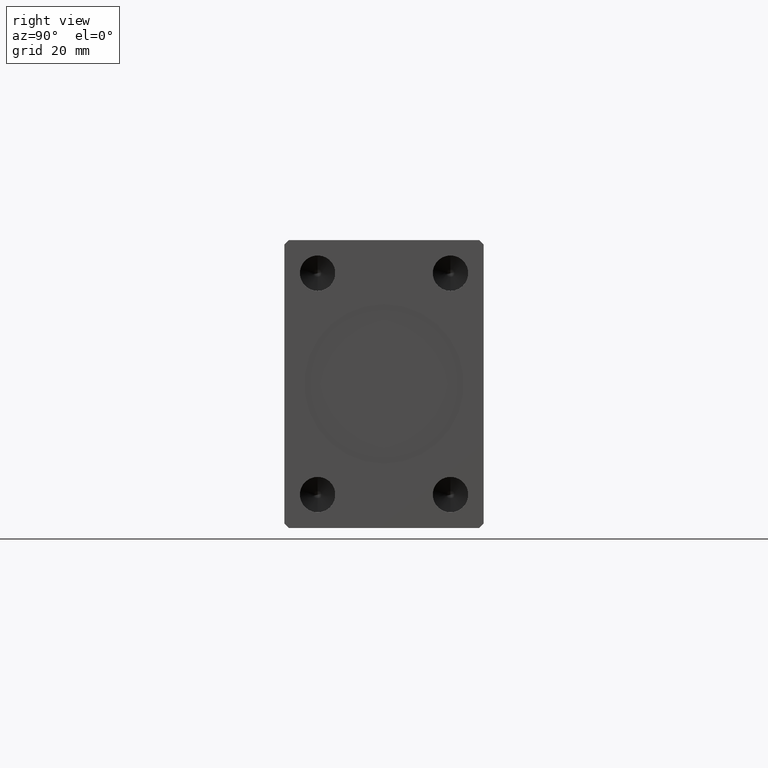
[diagram: clean part render]
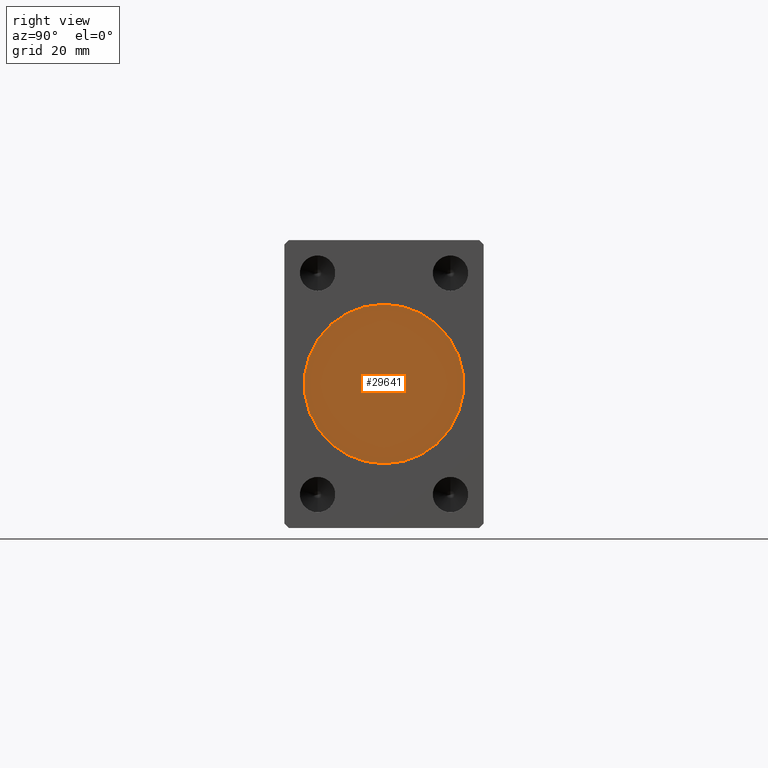
[diagram: same view with one face highlighted and labeled with its STEP entity id]
A machine part, right view. The second image highlights one B-rep face of the part: STEP entity #29641.
In plain terms, the highlighted planar face has unit normal (1, 0, 0).
Its self-contained STEP definition (entity closure, byte-faithful):
#169 = EDGE_LOOP ( 'NONE', ( #34745, #26266 ) ) ;
#1789 = CARTESIAN_POINT ( 'NONE',  ( 137.8000000000000114, 0.000000000000000000, -18.00000000000000000 ) ) ;
#2090 = CARTESIAN_POINT ( 'NONE',  ( 137.8000000000000114, 0.000000000000000000, 0.000000000000000000 ) ) ;
#6197 = CIRCLE ( 'NONE', #30433, 18.00000000000000000 ) ;
#6377 = DIRECTION ( 'NONE',  ( 0.000000000000000000, 0.000000000000000000, -1.000000000000000000 ) ) ;
#6696 = CARTESIAN_POINT ( 'NONE',  ( 137.8000000000000114, 2.204364238465235428E-15, 18.00000000000000000 ) ) ;
#7039 = DIRECTION ( 'NONE',  ( 1.000000000000000000, 0.000000000000000000, 0.000000000000000000 ) ) ;
#8558 = DIRECTION ( 'NONE',  ( 0.000000000000000000, 0.000000000000000000, -1.000000000000000000 ) ) ;
#16641 = CARTESIAN_POINT ( 'NONE',  ( 137.8000000000000114, 0.000000000000000000, 0.000000000000000000 ) ) ;
#18165 = FACE_OUTER_BOUND ( 'NONE', #169, .T. ) ;
#18378 = DIRECTION ( 'NONE',  ( 1.000000000000000000, 0.000000000000000000, 0.000000000000000000 ) ) ;
#18447 = DIRECTION ( 'NONE',  ( 1.000000000000000000, 0.000000000000000000, 0.000000000000000000 ) ) ;
#19728 = CIRCLE ( 'NONE', #31140, 18.00000000000000000 ) ;
#23930 = VERTEX_POINT ( 'NONE', #1789 ) ;
#24032 = AXIS2_PLACEMENT_3D ( 'NONE', #2090, #18378, #8558 ) ;
#26266 = ORIENTED_EDGE ( 'NONE', *, *, #33415, .T. ) ;
#27851 = DIRECTION ( 'NONE',  ( 0.000000000000000000, 0.000000000000000000, -1.000000000000000000 ) ) ;
#29641 = ADVANCED_FACE ( 'NONE', ( #18165 ), #38887, .T. ) ;
#30433 = AXIS2_PLACEMENT_3D ( 'NONE', #31618, #18447, #27851 ) ;
#31140 = AXIS2_PLACEMENT_3D ( 'NONE', #16641, #7039, #6377 ) ;
#31618 = CARTESIAN_POINT ( 'NONE',  ( 137.8000000000000114, 0.000000000000000000, 0.000000000000000000 ) ) ;
#33181 = EDGE_CURVE ( 'NONE', #23930, #42716, #6197, .T. ) ;
#33415 = EDGE_CURVE ( 'NONE', #42716, #23930, #19728, .T. ) ;
#34745 = ORIENTED_EDGE ( 'NONE', *, *, #33181, .T. ) ;
#38887 = PLANE ( 'NONE',  #24032 ) ;
#42716 = VERTEX_POINT ( 'NONE', #6696 ) ;